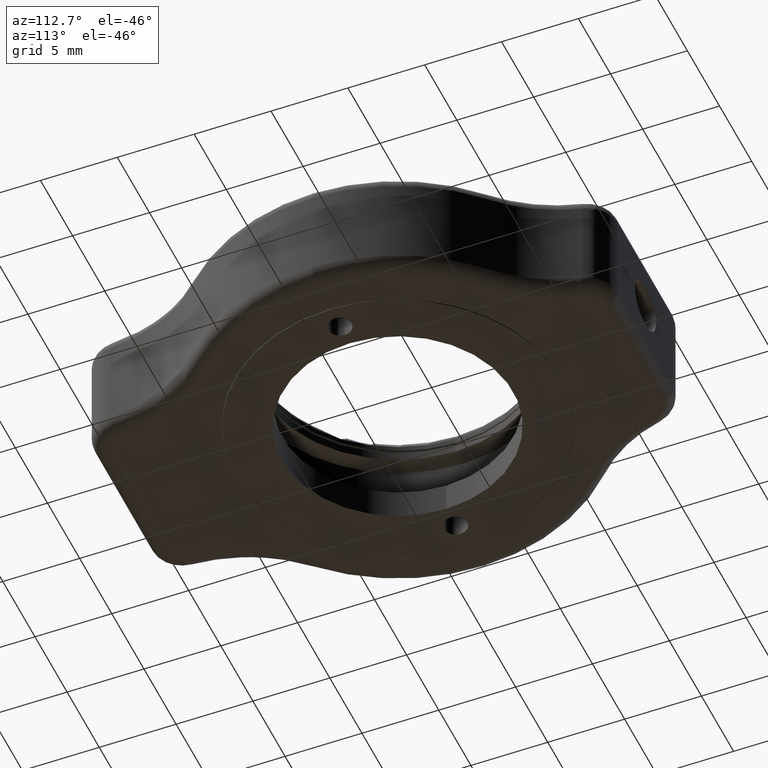
[diagram: clean part render]
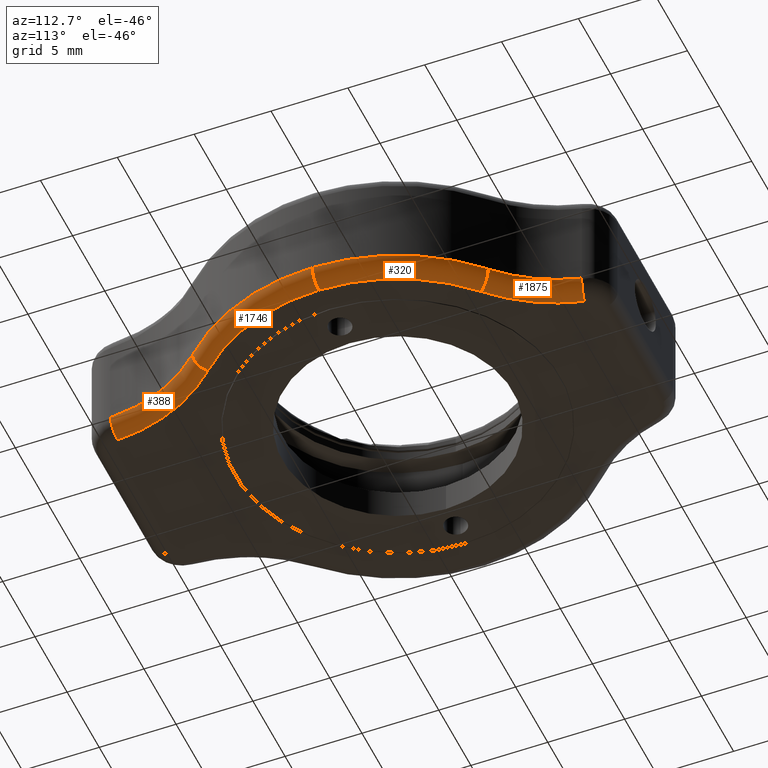
[diagram: same view with one multi-face feature highlighted, each face labeled with its STEP entity id]
A machine part, auxiliary view. The highlighted faces form ONE feature: a constant-radius fillet chain: 4 tangent blend faces with common blend radius 1 mm. The faces share edges in the B-rep.
Their STEP definitions:
[1] entity #388 (Torus):
#40 = DIRECTION ( 'NONE',  ( -0.7041865873900180500, 0.7100149647296178900, 0.0000000000000000000 ) ) ;
#76 = FACE_OUTER_BOUND ( 'NONE', #164, .T. ) ;
#164 = EDGE_LOOP ( 'NONE', ( #1084, #1264, #1505, #1290 ) ) ;
#197 = DIRECTION ( 'NONE',  ( 0.9985618216488004700, -0.05361238985000793500, 0.0000000000000000000 ) ) ;
#253 = CIRCLE ( 'NONE', #1096, 10.00000000000000200 ) ;
#340 = DIRECTION ( 'NONE',  ( -0.0000000000000000000, 0.0000000000000000000, 1.000000000000000000 ) ) ;
#379 = DIRECTION ( 'NONE',  ( -0.0000000000000000000, 0.0000000000000000000, 1.000000000000000000 ) ) ;
#388 = ADVANCED_FACE ( 'NONE', ( #76 ), #1015, .T. ) ;
#415 = EDGE_CURVE ( 'NONE', #1428, #2014, #2018, .T. ) ;
#488 = DIRECTION ( 'NONE',  ( 0.0000000000000000000, -0.0000000000000000000, -1.000000000000000000 ) ) ;
#519 = CARTESIAN_POINT ( 'NONE',  ( 7.647139996683950600, -14.32024059189622800, 31.00000000000000400 ) ) ;
#530 = CIRCLE ( 'NONE', #2193, 0.9999999999999993300 ) ;
#531 = CARTESIAN_POINT ( 'NONE',  ( 11.58945416092057800, -7.809827232950136800, 31.00000000000000400 ) ) ;
#552 = CARTESIAN_POINT ( 'NONE',  ( 10.88526757353056100, -7.099812268220519600, 31.00000000000000400 ) ) ;
#821 = EDGE_CURVE ( 'NONE', #2014, #1992, #253, .T. ) ;
#884 = AXIS2_PLACEMENT_3D ( 'NONE', #2094, #340, #1008 ) ;
#898 = DIRECTION ( 'NONE',  ( -0.05361238985000794200, -0.9985618216488005800, -0.0000000000000000000 ) ) ;
#899 = CARTESIAN_POINT ( 'NONE',  ( 7.647139996683949700, -14.32024059189622800, 30.00000000000000400 ) ) ;
#1008 = DIRECTION ( 'NONE',  ( 1.000000000000000000, 0.0000000000000000000, 0.0000000000000000000 ) ) ;
#1015 = TOROIDAL_SURFACE ( 'NONE', #884, 11.00000000000000400, 1.000000000000000000 ) ;
#1064 = VERTEX_POINT ( 'NONE', #2148 ) ;
#1084 = ORIENTED_EDGE ( 'NONE', *, *, #1949, .F. ) ;
#1085 = CARTESIAN_POINT ( 'NONE',  ( 18.63132003482075700, -14.90997688024631900, 30.00000000000000400 ) ) ;
#1096 = AXIS2_PLACEMENT_3D ( 'NONE', #1736, #488, #1386 ) ;
#1260 = DIRECTION ( 'NONE',  ( 0.7100149647296178900, 0.7041865873900180500, -1.011062299785524800E-017 ) ) ;
#1264 = ORIENTED_EDGE ( 'NONE', *, *, #821, .F. ) ;
#1290 = ORIENTED_EDGE ( 'NONE', *, *, #2010, .F. ) ;
#1386 = DIRECTION ( 'NONE',  ( 1.000000000000000000, 0.0000000000000000000, 0.0000000000000000000 ) ) ;
#1428 = VERTEX_POINT ( 'NONE', #899 ) ;
#1505 = ORIENTED_EDGE ( 'NONE', *, *, #415, .F. ) ;
#1723 = CIRCLE ( 'NONE', #1929, 11.00000000000000400 ) ;
#1736 = CARTESIAN_POINT ( 'NONE',  ( 18.63132003482075700, -14.90997688024631900, 31.00000000000000400 ) ) ;
#1804 = DIRECTION ( 'NONE',  ( 1.000000000000000000, 0.0000000000000000000, 0.0000000000000000000 ) ) ;
#1929 = AXIS2_PLACEMENT_3D ( 'NONE', #1085, #379, #1804 ) ;
#1949 = EDGE_CURVE ( 'NONE', #1992, #1064, #530, .T. ) ;
#1980 = CARTESIAN_POINT ( 'NONE',  ( 8.645701818332751600, -14.37385298174623600, 31.00000000000000400 ) ) ;
#1988 = AXIS2_PLACEMENT_3D ( 'NONE', #519, #898, #197 ) ;
#1992 = VERTEX_POINT ( 'NONE', #531 ) ;
#2010 = EDGE_CURVE ( 'NONE', #1064, #1428, #1723, .T. ) ;
#2014 = VERTEX_POINT ( 'NONE', #1980 ) ;
#2018 = CIRCLE ( 'NONE', #1988, 1.000000000000000000 ) ;
#2094 = CARTESIAN_POINT ( 'NONE',  ( 18.63132003482075700, -14.90997688024631900, 31.00000000000000400 ) ) ;
#2148 = CARTESIAN_POINT ( 'NONE',  ( 10.88526757353055900, -7.099812268220517800, 30.00000000000000400 ) ) ;
#2193 = AXIS2_PLACEMENT_3D ( 'NONE', #552, #1260, #40 ) ;
[2] entity #1746 (Torus):
#1 = VERTEX_POINT ( 'NONE', #924 ) ;
#40 = DIRECTION ( 'NONE',  ( -0.7041865873900180500, 0.7100149647296178900, 0.0000000000000000000 ) ) ;
#176 = VERTEX_POINT ( 'NONE', #2048 ) ;
#457 = ORIENTED_EDGE ( 'NONE', *, *, #2281, .F. ) ;
#469 = CARTESIAN_POINT ( 'NONE',  ( 2.223772548633339100, 1.633371797953784300, 31.00000000000000400 ) ) ;
#477 = DIRECTION ( 'NONE',  ( 1.000000000000000000, 0.0000000000000000000, 0.0000000000000000000 ) ) ;
#530 = CIRCLE ( 'NONE', #2193, 0.9999999999999993300 ) ;
#531 = CARTESIAN_POINT ( 'NONE',  ( 11.58945416092057800, -7.809827232950136800, 31.00000000000000400 ) ) ;
#552 = CARTESIAN_POINT ( 'NONE',  ( 10.88526757353056100, -7.099812268220519600, 31.00000000000000400 ) ) ;
#577 = AXIS2_PLACEMENT_3D ( 'NONE', #1346, #1743, #477 ) ;
#658 = EDGE_CURVE ( 'NONE', #176, #1, #662, .T. ) ;
#662 = CIRCLE ( 'NONE', #1430, 1.000000000000000900 ) ;
#783 = AXIS2_PLACEMENT_3D ( 'NONE', #469, #833, #1694 ) ;
#784 = CIRCLE ( 'NONE', #577, 13.30000000000000200 ) ;
#833 = DIRECTION ( 'NONE',  ( -0.0000000000000000000, 0.0000000000000000000, 1.000000000000000000 ) ) ;
#924 = CARTESIAN_POINT ( 'NONE',  ( 15.52377254863334200, 1.633371797953784300, 31.00000000000000400 ) ) ;
#1064 = VERTEX_POINT ( 'NONE', #2148 ) ;
#1126 = FACE_OUTER_BOUND ( 'NONE', #1597, .T. ) ;
#1135 = DIRECTION ( 'NONE',  ( 0.0000000000000000000, 0.0000000000000000000, -1.000000000000000000 ) ) ;
#1210 = ORIENTED_EDGE ( 'NONE', *, *, #1582, .F. ) ;
#1260 = DIRECTION ( 'NONE',  ( 0.7100149647296178900, 0.7041865873900180500, -1.011062299785524800E-017 ) ) ;
#1346 = CARTESIAN_POINT ( 'NONE',  ( 2.223772548633339100, 1.633371797953784300, 31.00000000000000400 ) ) ;
#1430 = AXIS2_PLACEMENT_3D ( 'NONE', #1706, #2224, #1135 ) ;
#1449 = AXIS2_PLACEMENT_3D ( 'NONE', #2204, #2197, #1856 ) ;
#1500 = ORIENTED_EDGE ( 'NONE', *, *, #658, .T. ) ;
#1582 = EDGE_CURVE ( 'NONE', #176, #1064, #1881, .T. ) ;
#1597 = EDGE_LOOP ( 'NONE', ( #1210, #1500, #457, #1894 ) ) ;
#1694 = DIRECTION ( 'NONE',  ( 1.000000000000000000, 0.0000000000000000000, 0.0000000000000000000 ) ) ;
#1706 = CARTESIAN_POINT ( 'NONE',  ( 14.52377254863334100, 1.633371797953784300, 31.00000000000000400 ) ) ;
#1743 = DIRECTION ( 'NONE',  ( -0.0000000000000000000, 0.0000000000000000000, 1.000000000000000000 ) ) ;
#1746 = ADVANCED_FACE ( 'NONE', ( #1126 ), #1995, .T. ) ;
#1856 = DIRECTION ( 'NONE',  ( 1.000000000000000000, 0.0000000000000000000, 0.0000000000000000000 ) ) ;
#1881 = CIRCLE ( 'NONE', #1449, 12.30000000000000200 ) ;
#1894 = ORIENTED_EDGE ( 'NONE', *, *, #1949, .T. ) ;
#1949 = EDGE_CURVE ( 'NONE', #1992, #1064, #530, .T. ) ;
#1992 = VERTEX_POINT ( 'NONE', #531 ) ;
#1995 = TOROIDAL_SURFACE ( 'NONE', #783, 12.30000000000000200, 1.000000000000000000 ) ;
#2048 = CARTESIAN_POINT ( 'NONE',  ( 14.52377254863334100, 1.633371797953784300, 30.00000000000000400 ) ) ;
#2148 = CARTESIAN_POINT ( 'NONE',  ( 10.88526757353055900, -7.099812268220517800, 30.00000000000000400 ) ) ;
#2193 = AXIS2_PLACEMENT_3D ( 'NONE', #552, #1260, #40 ) ;
#2197 = DIRECTION ( 'NONE',  ( 0.0000000000000000000, -0.0000000000000000000, -1.000000000000000000 ) ) ;
#2204 = CARTESIAN_POINT ( 'NONE',  ( 2.223772548633339100, 1.633371797953784300, 30.00000000000000400 ) ) ;
#2224 = DIRECTION ( 'NONE',  ( 0.0000000000000000000, -1.000000000000000000, 0.0000000000000000000 ) ) ;
#2281 = EDGE_CURVE ( 'NONE', #1992, #1, #784, .T. ) ;
[3] entity #320 (Torus):
#1 = VERTEX_POINT ( 'NONE', #924 ) ;
#35 = VERTEX_POINT ( 'NONE', #1844 ) ;
#103 = FACE_OUTER_BOUND ( 'NONE', #586, .T. ) ;
#176 = VERTEX_POINT ( 'NONE', #2048 ) ;
#193 = EDGE_CURVE ( 'NONE', #35, #1680, #226, .T. ) ;
#208 = EDGE_CURVE ( 'NONE', #1, #35, #1121, .T. ) ;
#226 = CIRCLE ( 'NONE', #929, 1.000000000000000200 ) ;
#254 = DIRECTION ( 'NONE',  ( 0.0000000000000000000, -0.0000000000000000000, -1.000000000000000000 ) ) ;
#292 = DIRECTION ( 'NONE',  ( -0.6850533523480704100, -0.7284928993728563300, 0.0000000000000000000 ) ) ;
#320 = ADVANCED_FACE ( 'NONE', ( #103 ), #572, .T. ) ;
#329 = ORIENTED_EDGE ( 'NONE', *, *, #208, .F. ) ;
#441 = AXIS2_PLACEMENT_3D ( 'NONE', #1185, #1033, #1577 ) ;
#572 = TOROIDAL_SURFACE ( 'NONE', #441, 12.30000000000000200, 1.000000000000000000 ) ;
#586 = EDGE_LOOP ( 'NONE', ( #695, #1959, #2029, #329 ) ) ;
#600 = CARTESIAN_POINT ( 'NONE',  ( 2.223772548633339100, 1.633371797953784300, 30.00000000000000400 ) ) ;
#619 = CARTESIAN_POINT ( 'NONE',  ( 10.64992878251460000, 10.59383446023992400, 30.00000000000000400 ) ) ;
#658 = EDGE_CURVE ( 'NONE', #176, #1, #662, .T. ) ;
#662 = CIRCLE ( 'NONE', #1430, 1.000000000000000900 ) ;
#695 = ORIENTED_EDGE ( 'NONE', *, *, #658, .F. ) ;
#785 = DIRECTION ( 'NONE',  ( 1.000000000000000000, 0.0000000000000000000, 0.0000000000000000000 ) ) ;
#817 = CARTESIAN_POINT ( 'NONE',  ( 10.64992878251460000, 10.59383446023992700, 31.00000000000000400 ) ) ;
#924 = CARTESIAN_POINT ( 'NONE',  ( 15.52377254863334200, 1.633371797953784300, 31.00000000000000400 ) ) ;
#929 = AXIS2_PLACEMENT_3D ( 'NONE', #817, #2221, #292 ) ;
#979 = DIRECTION ( 'NONE',  ( 1.000000000000000000, 0.0000000000000000000, 0.0000000000000000000 ) ) ;
#1033 = DIRECTION ( 'NONE',  ( -0.0000000000000000000, 0.0000000000000000000, 1.000000000000000000 ) ) ;
#1103 = AXIS2_PLACEMENT_3D ( 'NONE', #2034, #1703, #979 ) ;
#1121 = CIRCLE ( 'NONE', #1103, 13.30000000000000200 ) ;
#1135 = DIRECTION ( 'NONE',  ( 0.0000000000000000000, 0.0000000000000000000, -1.000000000000000000 ) ) ;
#1185 = CARTESIAN_POINT ( 'NONE',  ( 2.223772548633339100, 1.633371797953784300, 31.00000000000000400 ) ) ;
#1424 = CIRCLE ( 'NONE', #1841, 12.30000000000000200 ) ;
#1430 = AXIS2_PLACEMENT_3D ( 'NONE', #1706, #2224, #1135 ) ;
#1577 = DIRECTION ( 'NONE',  ( 1.000000000000000000, 0.0000000000000000000, 0.0000000000000000000 ) ) ;
#1680 = VERTEX_POINT ( 'NONE', #619 ) ;
#1703 = DIRECTION ( 'NONE',  ( -0.0000000000000000000, 0.0000000000000000000, 1.000000000000000000 ) ) ;
#1706 = CARTESIAN_POINT ( 'NONE',  ( 14.52377254863334100, 1.633371797953784300, 31.00000000000000400 ) ) ;
#1841 = AXIS2_PLACEMENT_3D ( 'NONE', #600, #254, #785 ) ;
#1844 = CARTESIAN_POINT ( 'NONE',  ( 11.33498213486267000, 11.32232735961278400, 31.00000000000000400 ) ) ;
#1959 = ORIENTED_EDGE ( 'NONE', *, *, #2081, .F. ) ;
#2029 = ORIENTED_EDGE ( 'NONE', *, *, #193, .F. ) ;
#2034 = CARTESIAN_POINT ( 'NONE',  ( 2.223772548633339100, 1.633371797953784300, 31.00000000000000400 ) ) ;
#2048 = CARTESIAN_POINT ( 'NONE',  ( 14.52377254863334100, 1.633371797953784300, 30.00000000000000400 ) ) ;
#2081 = EDGE_CURVE ( 'NONE', #1680, #176, #1424, .T. ) ;
#2221 = DIRECTION ( 'NONE',  ( -0.7284928993728562200, 0.6850533523480704100, -2.376756265229618000E-015 ) ) ;
#2224 = DIRECTION ( 'NONE',  ( 0.0000000000000000000, -1.000000000000000000, 0.0000000000000000000 ) ) ;
[4] entity #1875 (Torus):
#5 = AXIS2_PLACEMENT_3D ( 'NONE', #954, #599, #433 ) ;
#35 = VERTEX_POINT ( 'NONE', #1844 ) ;
#75 = DIRECTION ( 'NONE',  ( -0.0000000000000000000, 0.0000000000000000000, 1.000000000000000000 ) ) ;
#193 = EDGE_CURVE ( 'NONE', #35, #1680, #226, .T. ) ;
#201 = CIRCLE ( 'NONE', #5, 9.999999999999998200 ) ;
#226 = CIRCLE ( 'NONE', #929, 1.000000000000000200 ) ;
#263 = DIRECTION ( 'NONE',  ( 1.000000000000000000, 0.0000000000000000000, 0.0000000000000000000 ) ) ;
#292 = DIRECTION ( 'NONE',  ( -0.6850533523480704100, -0.7284928993728563300, 0.0000000000000000000 ) ) ;
#318 = DIRECTION ( 'NONE',  ( -0.9708987372901256600, -0.2394903796156324100, 0.0000000000000000000 ) ) ;
#351 = EDGE_CURVE ( 'NONE', #2282, #1862, #632, .T. ) ;
#433 = DIRECTION ( 'NONE',  ( 1.000000000000000000, 0.0000000000000000000, 0.0000000000000000000 ) ) ;
#501 = DIRECTION ( 'NONE',  ( 1.000000000000000000, 0.0000000000000000000, 0.0000000000000000000 ) ) ;
#597 = EDGE_CURVE ( 'NONE', #35, #2282, #201, .T. ) ;
#599 = DIRECTION ( 'NONE',  ( 0.0000000000000000000, -0.0000000000000000000, -1.000000000000000000 ) ) ;
#619 = CARTESIAN_POINT ( 'NONE',  ( 10.64992878251460000, 10.59383446023992400, 30.00000000000000400 ) ) ;
#632 = CIRCLE ( 'NONE', #1402, 1.000000000000000400 ) ;
#817 = CARTESIAN_POINT ( 'NONE',  ( 10.64992878251460000, 10.59383446023992700, 31.00000000000000400 ) ) ;
#882 = DIRECTION ( 'NONE',  ( -0.0000000000000000000, 0.0000000000000000000, 1.000000000000000000 ) ) ;
#894 = CIRCLE ( 'NONE', #1613, 11.00000000000000000 ) ;
#929 = AXIS2_PLACEMENT_3D ( 'NONE', #817, #2221, #292 ) ;
#954 = CARTESIAN_POINT ( 'NONE',  ( 18.18551565834336300, 18.60725635334135900, 31.00000000000000400 ) ) ;
#1139 = ORIENTED_EDGE ( 'NONE', *, *, #351, .F. ) ;
#1194 = ORIENTED_EDGE ( 'NONE', *, *, #193, .T. ) ;
#1201 = DIRECTION ( 'NONE',  ( -0.2394903796156308000, 0.9708987372901261000, 2.099690416163252600E-015 ) ) ;
#1276 = ORIENTED_EDGE ( 'NONE', *, *, #1552, .F. ) ;
#1391 = FACE_OUTER_BOUND ( 'NONE', #1546, .T. ) ;
#1392 = CARTESIAN_POINT ( 'NONE',  ( 7.505629548151977000, 15.97286217756941400, 31.00000000000000400 ) ) ;
#1402 = AXIS2_PLACEMENT_3D ( 'NONE', #1392, #1201, #318 ) ;
#1546 = EDGE_LOOP ( 'NONE', ( #1194, #1276, #1139, #1979 ) ) ;
#1552 = EDGE_CURVE ( 'NONE', #1862, #1680, #894, .T. ) ;
#1555 = CARTESIAN_POINT ( 'NONE',  ( 8.476528285442102000, 16.21235255718504200, 31.00000000000000400 ) ) ;
#1613 = AXIS2_PLACEMENT_3D ( 'NONE', #2031, #75, #263 ) ;
#1680 = VERTEX_POINT ( 'NONE', #619 ) ;
#1730 = AXIS2_PLACEMENT_3D ( 'NONE', #2261, #882, #501 ) ;
#1766 = CARTESIAN_POINT ( 'NONE',  ( 7.505629548151975200, 15.97286217756941400, 30.00000000000000400 ) ) ;
#1844 = CARTESIAN_POINT ( 'NONE',  ( 11.33498213486267000, 11.32232735961278400, 31.00000000000000400 ) ) ;
#1862 = VERTEX_POINT ( 'NONE', #1766 ) ;
#1875 = ADVANCED_FACE ( 'NONE', ( #1391 ), #2266, .T. ) ;
#1979 = ORIENTED_EDGE ( 'NONE', *, *, #597, .F. ) ;
#2031 = CARTESIAN_POINT ( 'NONE',  ( 18.18551565834336300, 18.60725635334135900, 30.00000000000000400 ) ) ;
#2221 = DIRECTION ( 'NONE',  ( -0.7284928993728562200, 0.6850533523480704100, -2.376756265229618000E-015 ) ) ;
#2261 = CARTESIAN_POINT ( 'NONE',  ( 18.18551565834336300, 18.60725635334135900, 31.00000000000000400 ) ) ;
#2266 = TOROIDAL_SURFACE ( 'NONE', #1730, 11.00000000000000000, 1.000000000000000000 ) ;
#2282 = VERTEX_POINT ( 'NONE', #1555 ) ;